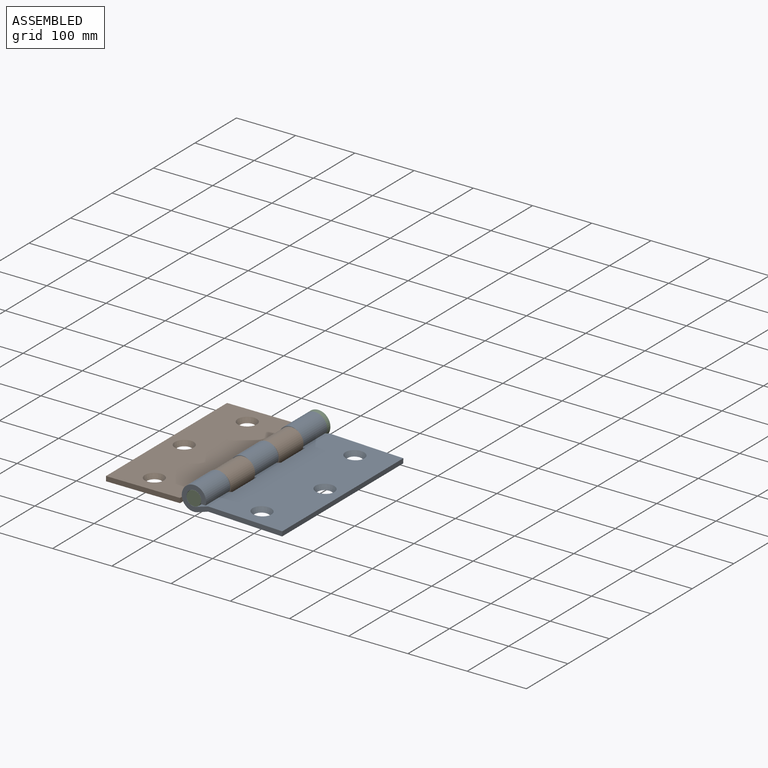
[diagram: assembled view]
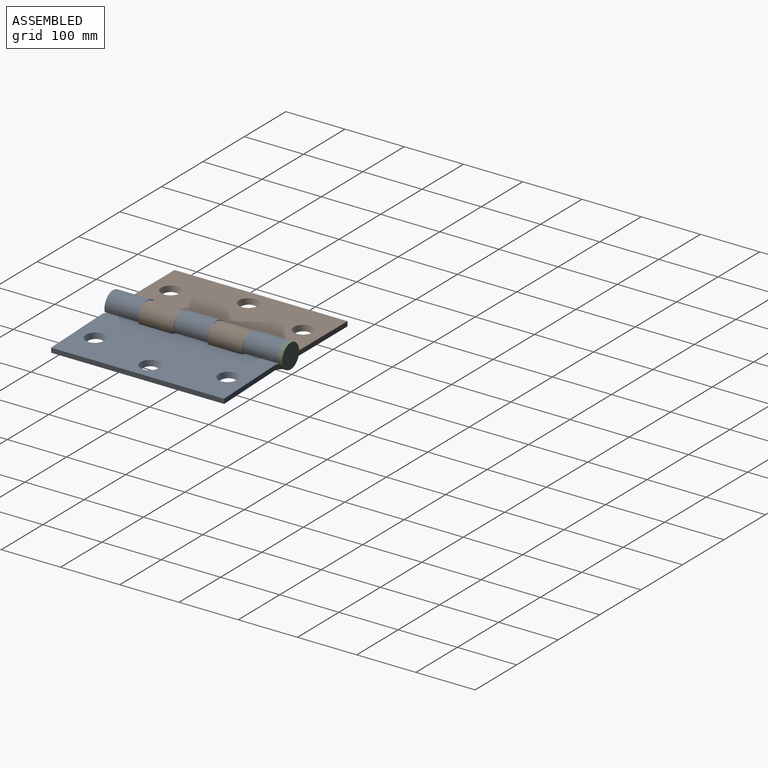
[diagram: assembled view, second angle]
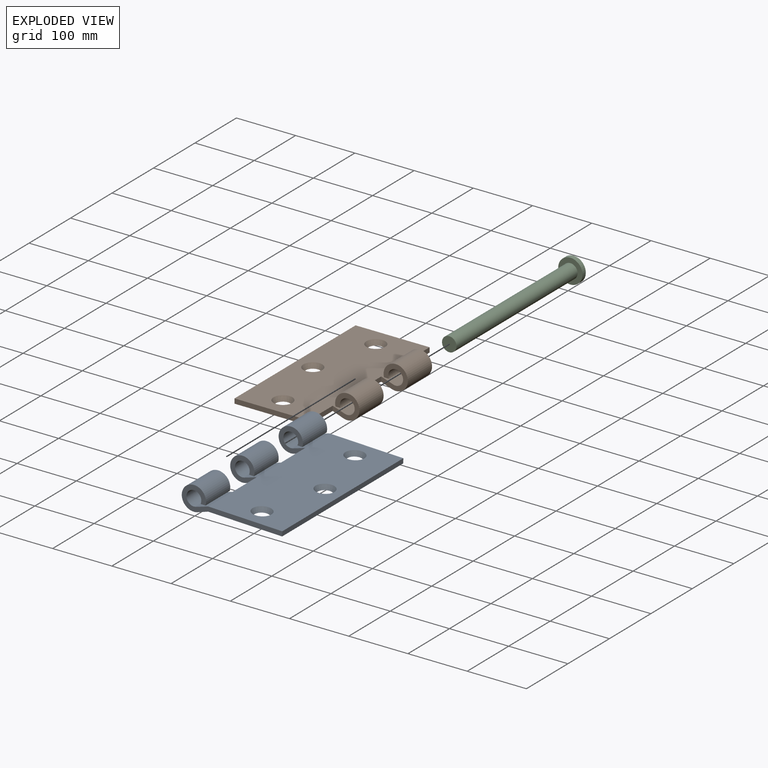
[diagram: exploded view]
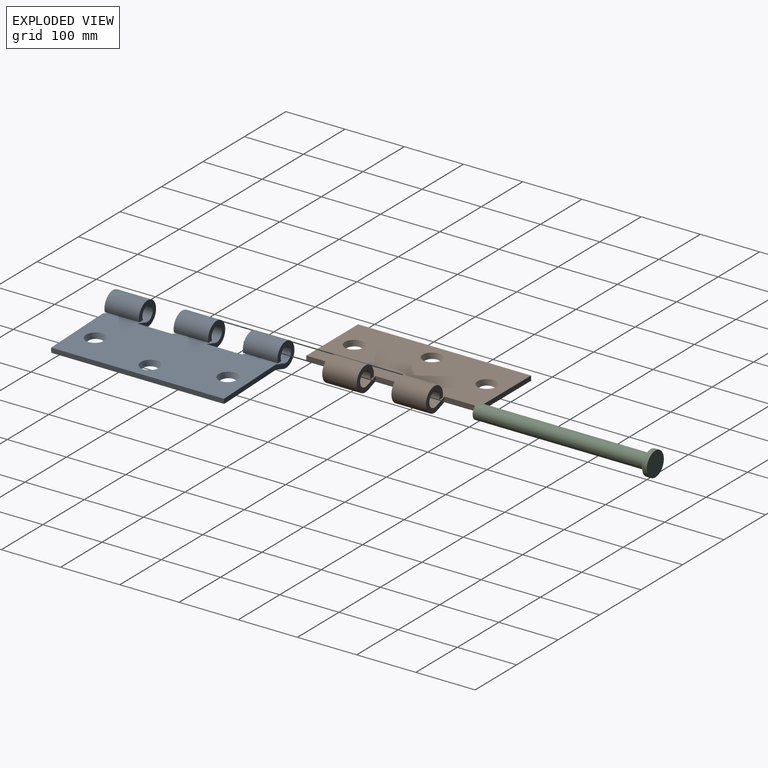
[diagram: exploded view, second angle]
ASSEMBLY  parts=3 mates=4
PART A: 29 faces, bbox 170x292x41 mm
  f0: plane 58.4x17.59mm, normal (-0.34,0,-0.94), area 1091mm2, adj f2,f12,f23,f28
  f1: plane 58.4x17.59mm, normal (-0.34,0,-0.94), area 1091mm2, adj f3,f12,f18,f25
  f2: cylinder r=20.5mm len=58.4mm, axis (0,1,0), area 6348.4mm2, adj f0,f4,f23,f28
  f3: cylinder r=20.5mm len=58.4mm, axis (0,1,0), area 6348.4mm2, adj f1,f5,f18,f25
  f4: plane 58.4x8.42mm, normal (0,0,-1), area 492mm2, adj f2,f6,f23,f28
  f5: plane 58.4x8.42mm, normal (0,0,-1), area 492mm2, adj f3,f7,f18,f25
  f6: cylinder r=12.5mm len=58.4mm, axis (0,1,0), area 3975.6mm2, adj f4,f8,f23,f28
  f7: cylinder r=12.5mm len=58.4mm, axis (0,1,0), area 3975.6mm2, adj f5,f9,f18,f25
  f8: plane 58.4x20.54mm, normal (0.32,0,0.95), area 1264.7mm2, adj f6,f10,f23,f28
  f9: plane 58.4x20.54mm, normal (0.32,0,0.95), area 1264.7mm2, adj f7,f10,f18,f25
  f10: plane 292x125mm, normal (0,0,1), area 34087.3mm2, adj f8,f9,f11,f17,f18,f19,f20,f21
  f11: plane 292x8mm, normal (-1,0,0), area 2336mm2, adj f10,f12,f18,f19
  f12: plane 292x125mm, normal (0,0,-1), area 35142.8mm2, adj f0,f1,f11,f13,f18,f19,f20,f21
  f13: plane 58.4x17.59mm, normal (-0.34,0,-0.94), area 1091mm2, adj f12,f14,f19,f26
  f14: cylinder r=20.5mm len=58.4mm, axis (0,1,0), area 6348.4mm2, adj f13,f15,f19,f26
  f15: plane 58.4x8.42mm, normal (0,0,-1), area 492mm2, adj f14,f16,f19,f26
  f16: cylinder r=12.5mm len=58.4mm, axis (0,1,0), area 3975.6mm2, adj f15,f17,f19,f26
  f17: plane 58.4x20.54mm, normal (0.32,0,0.95), area 1264.7mm2, adj f10,f16,f19,f26
  f18: plane 170x41mm, normal (0,-1,0), area 1864mm2, adj f1,f3,f5,f7,f9,f10,f11,f12
  f19: plane 170x41mm, normal (0,1,0), area 1864mm2, adj f10,f11,f12,f13,f14,f15,f16,f17
  f20: cone r=12mm half-angle=26.6deg, axis (0,0,1), area 786.8mm2, adj f10,f12
  f21: cone r=16mm half-angle=26.6deg, axis (0,0,1), area 786.8mm2, adj f10,f12
  f22: cone r=12mm half-angle=26.6deg, axis (0,0,1), area 786.8mm2, adj f10,f12
  f23: plane 45x41mm, normal (0,-1,0), area 864mm2, adj f0,f2,f4,f6,f8,f24
  f24: plane 58.4x8mm, normal (1,0,0), area 467.2mm2, adj f10,f12,f23,f25
  f25: plane 45x41mm, normal (0,1,0), area 864mm2, adj f1,f3,f5,f7,f9,f24
  f26: plane 45x41mm, normal (0,-1,0), area 864mm2, adj f13,f14,f15,f16,f17,f27
  f27: plane 58.4x8mm, normal (1,0,0), area 467.2mm2, adj f10,f12,f26,f28
  f28: plane 45x41mm, normal (0,1,0), area 864mm2, adj f0,f2,f4,f6,f8,f27
PART B: 25 faces, bbox 170x292x41 mm
  f0: plane 58.4x17.59mm, normal (-0.34,0,-0.94), area 1091mm2, adj f2,f14,f20,f24
  f1: plane 58.4x17.59mm, normal (-0.34,0,-0.94), area 1091mm2, adj f3,f14,f18,f22
  f2: cylinder r=20.5mm len=58.4mm, axis (0,1,0), area 6348.4mm2, adj f0,f4,f20,f24
  f3: cylinder r=20.5mm len=58.4mm, axis (0,1,0), area 6348.4mm2, adj f1,f5,f18,f22
  f4: plane 58.4x8.42mm, normal (0,0,-1), area 492mm2, adj f2,f6,f20,f24
  f5: plane 58.4x8.42mm, normal (0,0,-1), area 492mm2, adj f3,f7,f18,f22
  f6: cylinder r=12.5mm len=58.4mm, axis (0,1,0), area 3975.6mm2, adj f4,f8,f20,f24
  f7: cylinder r=12.5mm len=58.4mm, axis (0,1,0), area 3975.6mm2, adj f5,f9,f18,f22
  f8: plane 58.4x20.54mm, normal (0.32,0,0.95), area 1264.7mm2, adj f6,f12,f20,f24
  f9: plane 58.4x20.54mm, normal (0.32,0,0.95), area 1264.7mm2, adj f7,f12,f18,f22
  f10: plane 125x8mm, normal (0,-1,0), area 1000mm2, adj f12,f13,f14,f19
  f11: plane 125x8mm, normal (0,1,0), area 1000mm2, adj f12,f13,f14,f23
  f12: plane 292x125mm, normal (0,0,1), area 34087.3mm2, adj f8,f9,f10,f11,f13,f15,f16,f17
  f13: plane 292x8mm, normal (-1,0,0), area 2336mm2, adj f10,f11,f12,f14
  f14: plane 292x125mm, normal (0,0,-1), area 35142.8mm2, adj f0,f1,f10,f11,f13,f15,f16,f17
  f15: cone r=12mm half-angle=26.6deg, axis (0,0,1), area 786.8mm2, adj f12,f14
  f16: cone r=16mm half-angle=26.6deg, axis (0,0,1), area 786.8mm2, adj f12,f14
  f17: cone r=12mm half-angle=26.6deg, axis (0,0,1), area 786.8mm2, adj f12,f14
  f18: plane 45x41mm, normal (0,-1,0), area 864mm2, adj f1,f3,f5,f7,f9,f19
  f19: plane 58.4x8mm, normal (1,0,0), area 467.2mm2, adj f10,f12,f14,f18
  f20: plane 45x41mm, normal (0,-1,0), area 864mm2, adj f0,f2,f4,f6,f8,f21
  f21: plane 58.4x8mm, normal (1,0,0), area 467.2mm2, adj f12,f14,f20,f22
  f22: plane 45x41mm, normal (0,1,0), area 864mm2, adj f1,f3,f5,f7,f9,f21
  f23: plane 58.4x8mm, normal (1,0,0), area 467.2mm2, adj f11,f12,f14,f24
  f24: plane 45x41mm, normal (0,1,0), area 864mm2, adj f0,f2,f4,f6,f8,f23
PART C: 5 faces, bbox 41x300x41 mm
  f0: cylinder r=12.25mm len=292mm, axis (0,1,0), area 22475mm2, adj f1,f4
  f1: plane 24.5x24.5mm, normal (0,-1,0), area 471.4mm2, adj f0
  f2: cylinder r=20.5mm len=41mm, axis (0,-1,0), area 1030.4mm2, adj f3,f4
  f3: plane 41x41mm, normal (0,1,0), area 1320.3mm2, adj f2
  f4: plane 41x41mm, normal (0,-1,0), area 848.8mm2, adj f0,f2
PLACE A rot(axis=(-0.02,0,-1),180deg) t=(23.91,-301.8,13.37)mm
PLACE B t=(-23.73,-9.8,13.6)mm fixed
PLACE C rot(axis=(0,-1,0),42.1deg) t=(-0.24,-9.8,23.25)mm
MATE cylindrical A.f2 <-> C.f0  axis (0,1,0) through (-0.24,-9.8,23.25)mm
MATE planar C.f2 <-> A.f2  axis (0,-1,0) through (-0.24,-9.8,23.25)mm
MATE planar B.f2 <-> A.f2  axis (0,-1,0) through (0.77,-243.4,22.6)mm
MATE cylindrical B.f2 <-> A.f25  axis (0,1,0) through (0.77,-68.2,22.6)mm
